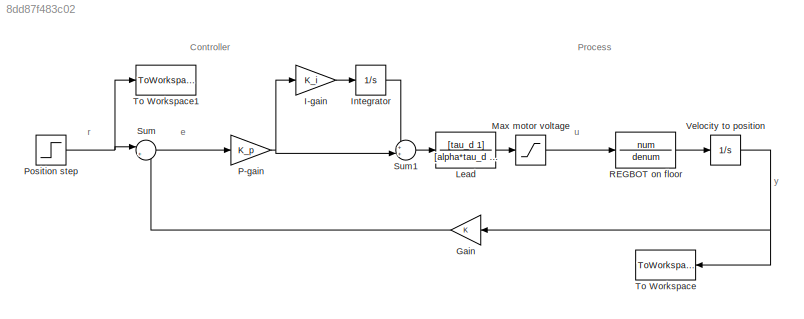
MODEL slx_8dd87f483c02
KIND model
CONFIG AbsTol = auto
CONFIG EnableMultiTasking = off
CONFIG FixedStep = auto
CONFIG MaxStep = auto
CONFIG MinStep = auto
CONFIG RelTol = 1e-3
CONFIG SampleTimeConstraint = Unconstrained
CONFIG Solver = VariableStepAuto
CONFIG SolverName = VariableStepAuto
CONFIG StartTime = 0.0
CONFIG StopTime = 5
BLOCK [Gain] Gain
  OutDataTypeStr = Inherit: Inherit via internal rule
  ParamDataTypeStr = Inherit: Inherit via internal rule
  SaturateOnIntegerOverflow = off
BLOCK [Gain] I-gain
  Gain = K_i
  OutDataTypeStr = Inherit: Inherit via internal rule
  ParamDataTypeStr = Inherit: Inherit via internal rule
  SaturateOnIntegerOverflow = off
BLOCK [Integrator] Integrator
  Ports = [1, 1]
BLOCK [TransferFcn] Lead
  Denominator = [alpha*tau_d 1]
  Numerator = [tau_d 1]
BLOCK [Saturate] Max motor voltage
  InputPortMap = u0
  LowerLimit = -3
  Ports = [1, 1]
  UpperLimit = 3
BLOCK [Gain] P-gain
  Gain = K_p
  OutDataTypeStr = Inherit: Inherit via internal rule
  ParamDataTypeStr = Inherit: Inherit via internal rule
  SaturateOnIntegerOverflow = off
BLOCK [Step] Position step
  After = 0.5
  SampleTime = 0
  Time = 0
BLOCK [TransferFcn] REGBOT on floor
  Denominator = denum
  Numerator = num
BLOCK [Sum] Sum
  IconShape = round
  InputSameDT = off
  Inputs = |+-
  OutDataTypeStr = Inherit: Inherit via internal rule
  Ports = [2, 1]
  SaturateOnIntegerOverflow = off
BLOCK [Sum] Sum1
  IconShape = round
  InputSameDT = off
  Inputs = ++|
  OutDataTypeStr = Inherit: Inherit via internal rule
  Ports = [2, 1]
  SaturateOnIntegerOverflow = off
BLOCK [ToWorkspace] To Workspace
  FixptAsFi = on
  MaxDataPoints = inf
  Ports = [1]
  SampleTime = -1
  Save2DSignal = 3-D array (concatenate along third dimension)
  SaveFormat = Timeseries
  VariableName = simout
BLOCK [ToWorkspace] To Workspace1
  FixptAsFi = on
  MaxDataPoints = inf
  Ports = [1]
  SampleTime = -1
  Save2DSignal = 3-D array (concatenate along third dimension)
  SaveFormat = Timeseries
  VariableName = step
BLOCK [Integrator] Velocity to position
  Ports = [1, 1]
ANNOTATION (root): Controller
ANNOTATION (root): Process
ANNOTATION (root): e
ANNOTATION (root): r
ANNOTATION (root): u
ANNOTATION (root): y
LINE Gain:1 -> Sum:2
LINE I-gain:1 -> Integrator:1
LINE Integrator:1 -> Sum1:1
LINE Lead:1 -> Max motor voltage:1
LINE Max motor voltage:1 -> REGBOT on floor:1
NET P-gain:1 -> I-gain:1, Sum1:2
NET Position step:1 -> Sum:1, To Workspace1:1
LINE REGBOT on floor:1 -> Velocity to position:1
LINE Sum1:1 -> Lead:1
LINE Sum:1 -> P-gain:1
NET Velocity to position:1 -> Gain:1, To Workspace:1
note: NET lines group one-source signal fan-out (src -> all destinations, sorted); 1:1 wires keep LINE
